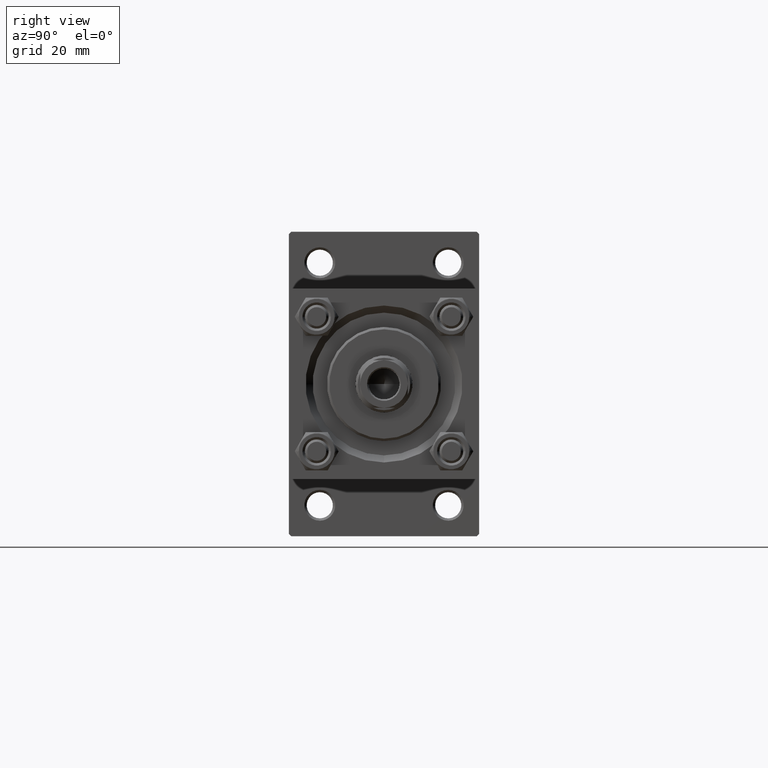
[diagram: clean part render]
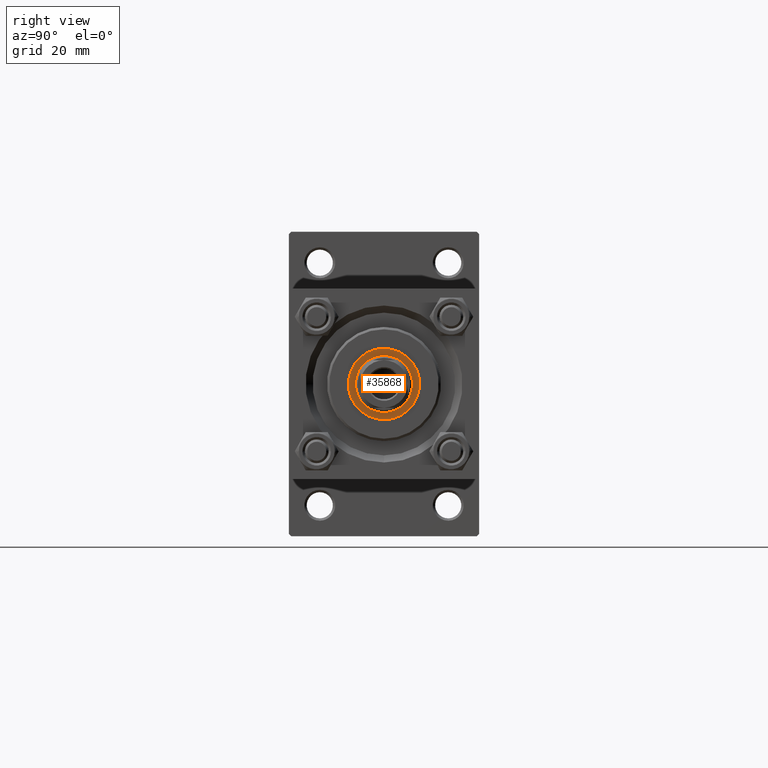
[diagram: same view with one face highlighted and labeled with its STEP entity id]
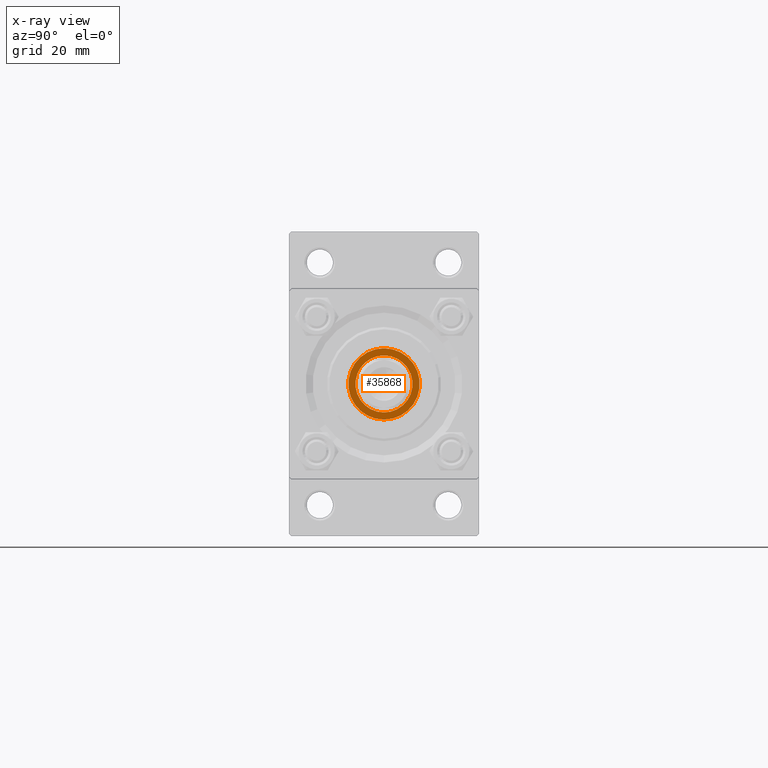
[diagram: x-ray of the same camera — body ghosted, the highlighted face saturated]
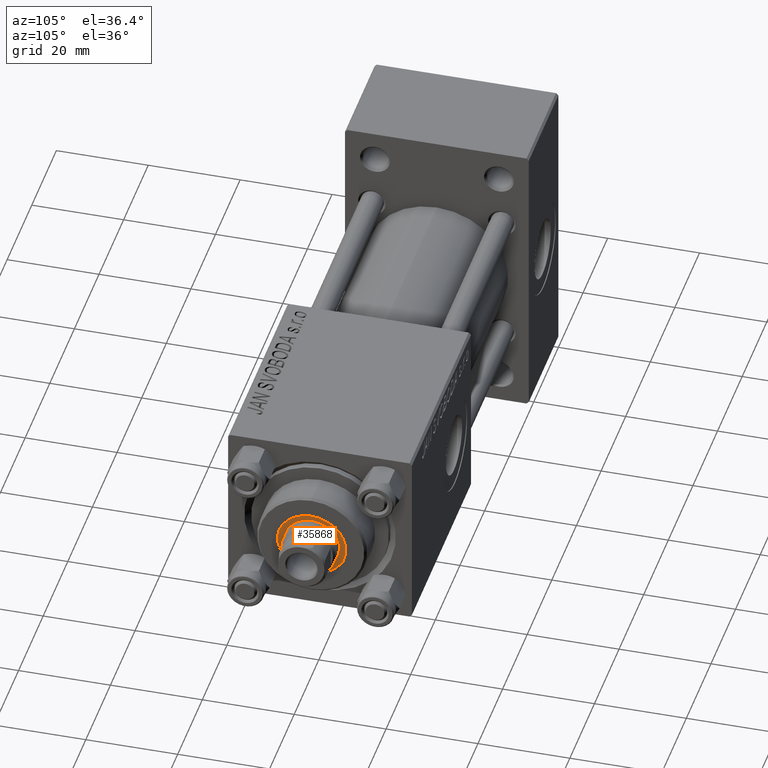
[diagram: same view with one face highlighted and labeled with its STEP entity id]
A machine part, right view. The second image highlights one B-rep face of the part: STEP entity #35868.
The next image is the same camera in x-ray: the body ghosted, the highlighted face saturated — about 0% of this face is hidden behind the body in this view.
A second angle (auxiliary view) of the same face is appended — the face is thin or edge-on in the first view.
In plain terms, the highlighted planar face has unit normal (1, 0, 0).
Its self-contained STEP definition (entity closure, byte-faithful):
#861 = CIRCLE ( 'NONE', #13747, 6.000000000000000888 ) ;
#1080 = CARTESIAN_POINT ( 'NONE',  ( 0.000000000000000000, 0.000000000000000000, 35.20000000000000284 ) ) ;
#1331 = CARTESIAN_POINT ( 'NONE',  ( 6.000000000000000888, 0.000000000000000000, 35.20000000000000284 ) ) ;
#1756 = AXIS2_PLACEMENT_3D ( 'NONE', #25350, #32686, #16799 ) ;
#5364 = CARTESIAN_POINT ( 'NONE',  ( -6.000000000000000888, 7.347880794884119736E-16, 35.20000000000000284 ) ) ;
#6583 = DIRECTION ( 'NONE',  ( 0.000000000000000000, 0.000000000000000000, 1.000000000000000000 ) ) ;
#7260 = CARTESIAN_POINT ( 'NONE',  ( 0.000000000000000000, 0.000000000000000000, 35.20000000000000284 ) ) ;
#10382 = CARTESIAN_POINT ( 'NONE',  ( 0.000000000000000000, 0.000000000000000000, 35.20000000000000284 ) ) ;
#13653 = VERTEX_POINT ( 'NONE', #33655 ) ;
#13747 = AXIS2_PLACEMENT_3D ( 'NONE', #33123, #14430, #13933 ) ;
#13933 = DIRECTION ( 'NONE',  ( 1.000000000000000000, 0.000000000000000000, 0.000000000000000000 ) ) ;
#14430 = DIRECTION ( 'NONE',  ( -0.000000000000000000, -0.000000000000000000, -1.000000000000000000 ) ) ;
#15165 = PLANE ( 'NONE',  #42500 ) ;
#15480 = CIRCLE ( 'NONE', #1756, 6.000000000000000888 ) ;
#15514 = EDGE_CURVE ( 'NONE', #37367, #43666, #861, .T. ) ;
#15752 = ORIENTED_EDGE ( 'NONE', *, *, #15514, .T. ) ;
#16799 = DIRECTION ( 'NONE',  ( 1.000000000000000000, 0.000000000000000000, 0.000000000000000000 ) ) ;
#18143 = EDGE_CURVE ( 'NONE', #43666, #37367, #15480, .T. ) ;
#18429 = EDGE_LOOP ( 'NONE', ( #15752, #18558 ) ) ;
#18558 = ORIENTED_EDGE ( 'NONE', *, *, #18143, .T. ) ;
#18692 = DIRECTION ( 'NONE',  ( 1.000000000000000000, 0.000000000000000000, -0.000000000000000000 ) ) ;
#19746 = DIRECTION ( 'NONE',  ( 0.000000000000000000, 0.000000000000000000, 1.000000000000000000 ) ) ;
#21431 = ORIENTED_EDGE ( 'NONE', *, *, #29820, .T. ) ;
#21903 = DIRECTION ( 'NONE',  ( 1.000000000000000000, 0.000000000000000000, 0.000000000000000000 ) ) ;
#23460 = ORIENTED_EDGE ( 'NONE', *, *, #25859, .T. ) ;
#24508 = EDGE_LOOP ( 'NONE', ( #23460, #21431 ) ) ;
#25350 = CARTESIAN_POINT ( 'NONE',  ( 0.000000000000000000, 0.000000000000000000, 35.20000000000000284 ) ) ;
#25859 = EDGE_CURVE ( 'NONE', #13653, #37372, #38143, .T. ) ;
#26970 = CIRCLE ( 'NONE', #47910, 7.500000000000000888 ) ;
#29275 = AXIS2_PLACEMENT_3D ( 'NONE', #7260, #48915, #21903 ) ;
#29820 = EDGE_CURVE ( 'NONE', #37372, #13653, #26970, .T. ) ;
#32686 = DIRECTION ( 'NONE',  ( -0.000000000000000000, -0.000000000000000000, -1.000000000000000000 ) ) ;
#33123 = CARTESIAN_POINT ( 'NONE',  ( 0.000000000000000000, 0.000000000000000000, 35.20000000000000284 ) ) ;
#33655 = CARTESIAN_POINT ( 'NONE',  ( 7.500000000000000888, 0.000000000000000000, 35.20000000000000284 ) ) ;
#34350 = FACE_OUTER_BOUND ( 'NONE', #24508, .T. ) ;
#35159 = DIRECTION ( 'NONE',  ( 1.000000000000000000, 0.000000000000000000, 0.000000000000000000 ) ) ;
#35667 = CARTESIAN_POINT ( 'NONE',  ( -7.500000000000000888, 9.184850993605149917E-16, 35.20000000000000284 ) ) ;
#35868 = ADVANCED_FACE ( 'NONE', ( #34350, #37631 ), #15165, .T. ) ;
#37367 = VERTEX_POINT ( 'NONE', #1331 ) ;
#37372 = VERTEX_POINT ( 'NONE', #35667 ) ;
#37631 = FACE_BOUND ( 'NONE', #18429, .T. ) ;
#38143 = CIRCLE ( 'NONE', #29275, 7.500000000000000888 ) ;
#42500 = AXIS2_PLACEMENT_3D ( 'NONE', #10382, #6583, #18692 ) ;
#43666 = VERTEX_POINT ( 'NONE', #5364 ) ;
#47910 = AXIS2_PLACEMENT_3D ( 'NONE', #1080, #19746, #35159 ) ;
#48915 = DIRECTION ( 'NONE',  ( 0.000000000000000000, 0.000000000000000000, 1.000000000000000000 ) ) ;